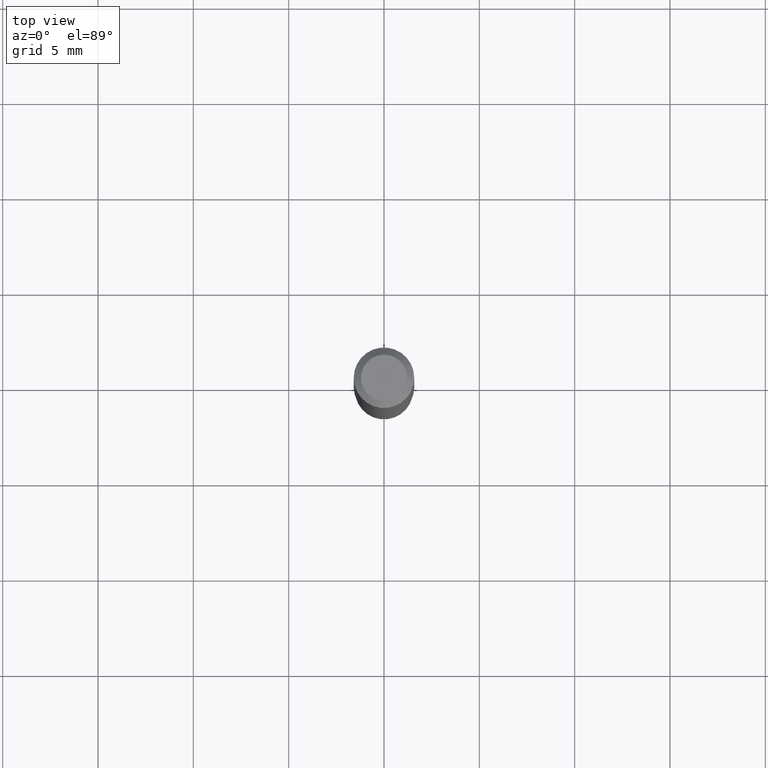
[diagram: clean part render]
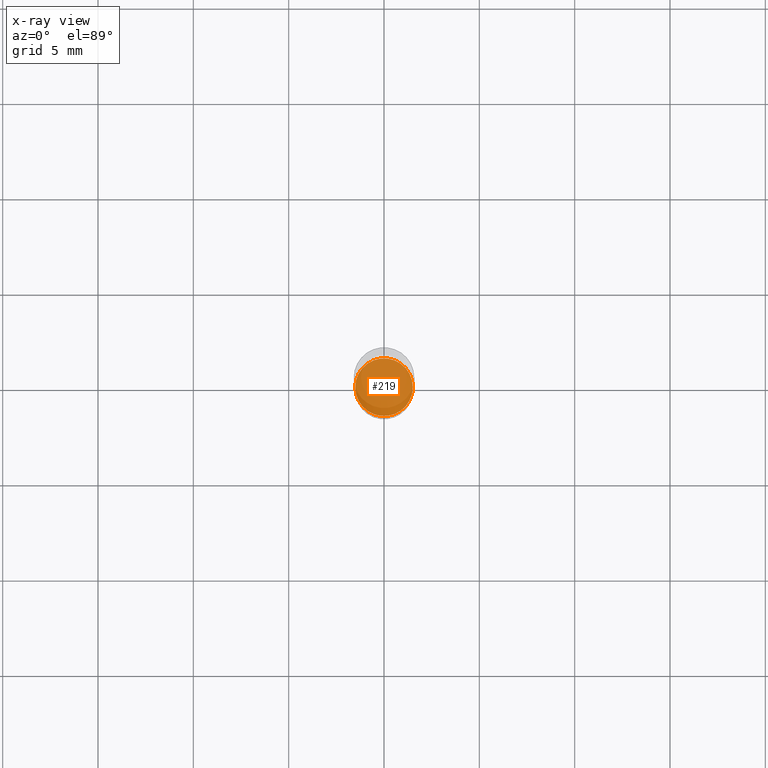
[diagram: x-ray — body ghosted, one internal face saturated and labeled with its STEP entity id]
A machine part, top view, then the same camera in x-ray: the body is ghosted and one INTERNAL B-rep face — a face not visible from any outside direction — is saturated and labeled: STEP entity #219.
In plain terms, the highlighted planar face has unit normal (-0, 0, 1).
Its self-contained STEP definition (entity closure, byte-faithful):
#7 = EDGE_CURVE ( 'NONE', #270, #13, #360, .T. ) ;
#13 = VERTEX_POINT ( 'NONE', #383 ) ;
#38 = DIRECTION ( 'NONE',  ( 1.000000000000000000, -6.982962677686259611E-15, 0.000000000000000000 ) ) ;
#51 = EDGE_CURVE ( 'NONE', #13, #270, #311, .T. ) ;
#62 = DIRECTION ( 'NONE',  ( -2.445468806185136597E-29, 3.491481338843145583E-15, 1.000000000000000000 ) ) ;
#113 = DIRECTION ( 'NONE',  ( 1.000000000000000000, -6.982962677686265922E-15, 4.876176775795935793E-29 ) ) ;
#134 = AXIS2_PLACEMENT_3D ( 'NONE', #378, #62, #204 ) ;
#142 = PLANE ( 'NONE',  #444 ) ;
#143 = DIRECTION ( 'NONE',  ( -2.445468806185136597E-29, 3.491481338843145583E-15, 1.000000000000000000 ) ) ;
#204 = DIRECTION ( 'NONE',  ( 1.000000000000000000, -6.982962677686259611E-15, 0.000000000000000000 ) ) ;
#219 = ADVANCED_FACE ( 'NONE', ( #244 ), #142, .F. ) ;
#227 = ORIENTED_EDGE ( 'NONE', *, *, #51, .F. ) ;
#231 = ORIENTED_EDGE ( 'NONE', *, *, #7, .F. ) ;
#244 = FACE_OUTER_BOUND ( 'NONE', #329, .T. ) ;
#270 = VERTEX_POINT ( 'NONE', #365 ) ;
#279 = CARTESIAN_POINT ( 'NONE',  ( 2.787834439051055989E-29, -3.980288726281186698E-15, -1.140000000000000124 ) ) ;
#283 = CARTESIAN_POINT ( 'NONE',  ( 2.787834439051055989E-29, -3.980288726281186698E-15, -1.140000000000000124 ) ) ;
#311 = CIRCLE ( 'NONE', #381, 0.05949999999999999734 ) ;
#329 = EDGE_LOOP ( 'NONE', ( #227, #231 ) ) ;
#360 = CIRCLE ( 'NONE', #134, 0.05949999999999999734 ) ;
#365 = CARTESIAN_POINT ( 'NONE',  ( -0.05949999999999999734, -3.554866571329815905E-15, -1.140000000000000124 ) ) ;
#378 = CARTESIAN_POINT ( 'NONE',  ( 2.787834439051055989E-29, -3.980288726281186698E-15, -1.140000000000000124 ) ) ;
#381 = AXIS2_PLACEMENT_3D ( 'NONE', #283, #143, #38 ) ;
#383 = CARTESIAN_POINT ( 'NONE',  ( 0.05949999999999999734, -4.395775005603518747E-15, -1.140000000000000124 ) ) ;
#387 = DIRECTION ( 'NONE',  ( -2.438088387897960049E-29, 3.491481338843145188E-15, 1.000000000000000000 ) ) ;
#444 = AXIS2_PLACEMENT_3D ( 'NONE', #279, #387, #113 ) ;